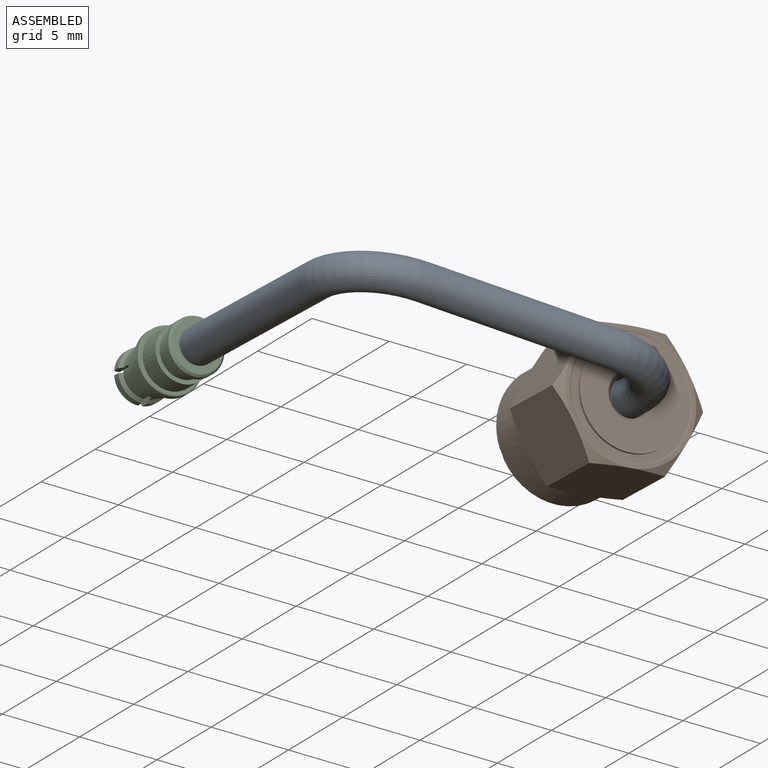
[diagram: assembled view]
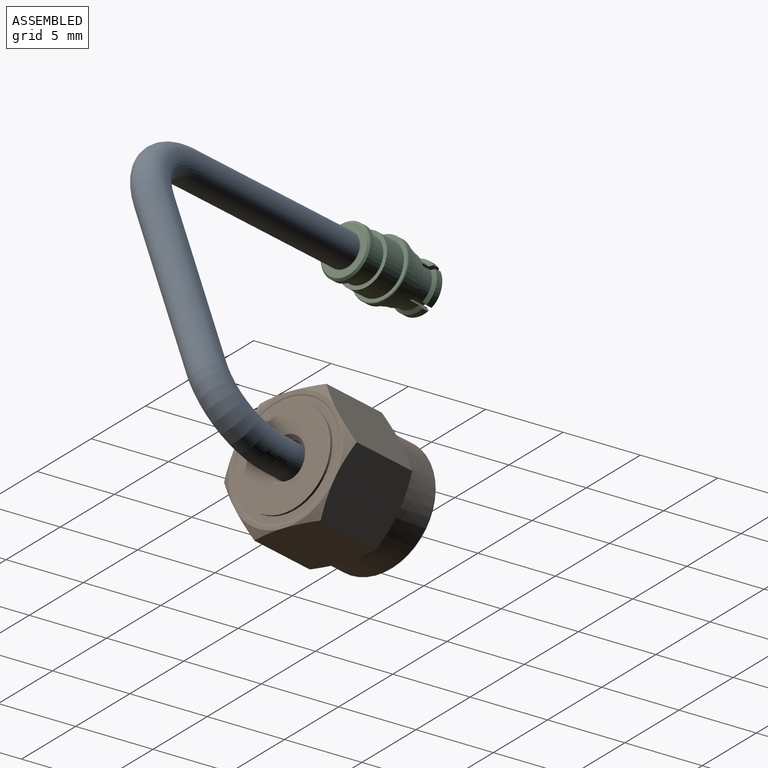
[diagram: assembled view, second angle]
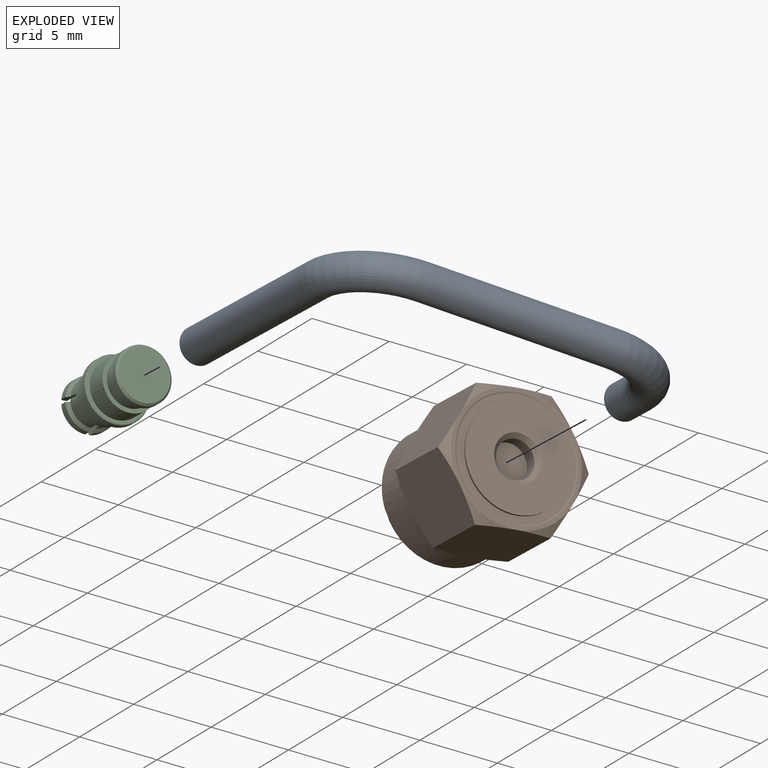
[diagram: exploded view]
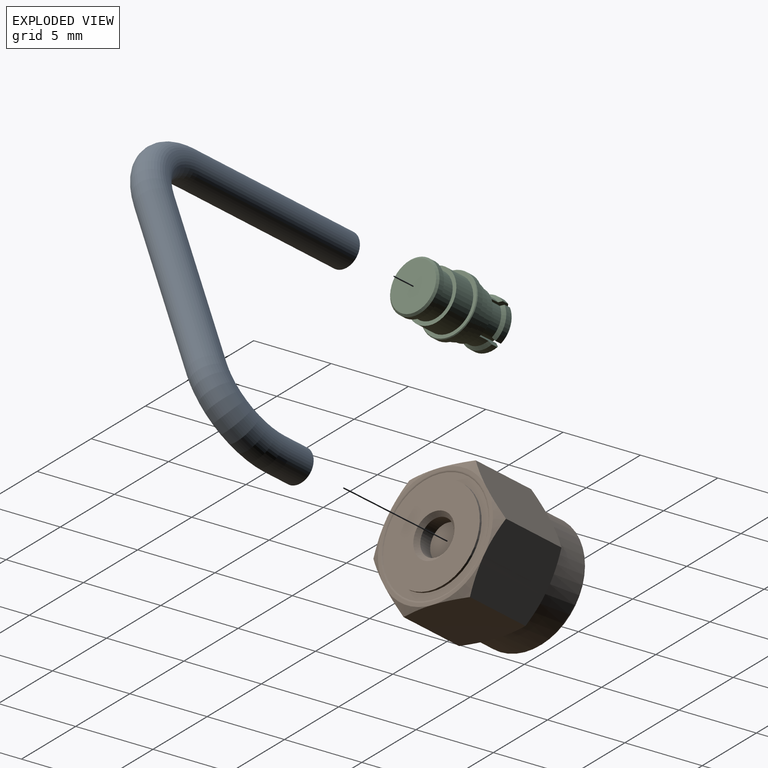
[diagram: exploded view, second angle]
ASSEMBLY  parts=3 mates=2
PART A: 7 faces, bbox 22.5x18.8x5.3 mm
  f0: torus R=4.1mm, axis (0.15,0,0.99), area 44.5mm2, adj f2,f3
  f1: torus R=4.1mm, axis (0.15,0,0.99), area 44.5mm2, adj f3,f4
  f2: cylinder r=1.1mm len=13.14mm, axis (0,1,0), area 90.8mm2, adj f0,f5
  f3: cylinder r=1.1mm len=11.74mm, axis (0.99,0,-0.15), area 79.7mm2, adj f0,f1
  f4: cylinder r=1.1mm len=2.2mm, axis (0,-1,0), area 13.1mm2, adj f1,f6
  f5: plane 2.2x2.2mm, normal (0,1,0), area 3.8mm2, adj f2
  f6: plane 2.2x2.2mm, normal (0,1,0), area 3.8mm2, adj f4
PART B: 52 faces, bbox 8.3x9.5x9.5 mm
  f0: torus R=3.67mm, axis (-1,0,0), area 3.8mm2, adj f3,f22,f23
  f1: torus R=3.45mm, axis (-1,0,0), area 3.3mm2, adj f6,f23,f28
  f2: torus R=3.75mm, axis (-1,0,0), area 1.4mm2, adj f36,f37,f38
  f3: cylinder r=3.88mm len=7.75mm, axis (-1,0,0), area 56mm2, adj f0,f4,f22
  f4: cone r=4.58mm half-angle=60deg, axis (-1,0,0), area 8.3mm2, adj f3,f24,f25,f26,f27,f29,f30
  f5: cone r=4.58mm half-angle=60deg, axis (1,0,0), area 1.5mm2, adj f26,f27,f36
  f6: cylinder r=3.25mm len=6.5mm, axis (-1,0,0), area 12.3mm2, adj f1,f7,f28
  f7: cone r=3.25mm half-angle=60deg, axis (1,0,0), area 9.4mm2, adj f6,f8
  f8: cylinder r=2.82mm len=5.65mm, axis (-1,0,0), area 37.9mm2, adj f7,f9,f39
  f9: cone r=3.21mm half-angle=60deg, axis (-1,0,0), area 4.2mm2, adj f8,f39,f40
  f10: cylinder r=3.16mm len=6.32mm, axis (-1,0,0), area 3mm2, adj f38,f41
  f11: cylinder r=3.23mm len=6.45mm, axis (-1,0,0), area 28.6mm2, adj f40,f42
  f12: cone r=1.43mm half-angle=45deg, axis (-1,0,0), area 3mm2, adj f13,f41
  f13: cylinder r=1.16mm len=2.33mm, axis (-1,0,0), area 6mm2, adj f12,f43
  f14: cylinder r=2.96mm len=5.93mm, axis (1,0,0), area 0.8mm2, adj f42,f44
  f15: cylinder r=2.27mm len=4.53mm, axis (-1,0,0), area 23.5mm2, adj f44,f45
  f16: cylinder r=2.04mm len=4.09mm, axis (-1,0,0), area 2.4mm2, adj f45,f46
  f17: cone r=2mm half-angle=45deg, axis (-1,0,0), area 0.3mm2, adj f46,f47,f48
  f18: cylinder r=0.65mm len=1.31mm, axis (1,0,0), area 0.2mm2, adj f48,f49
  f19: cylinder r=0.63mm len=1.27mm, axis (1,0,0), area 0.4mm2, adj f49,f50
  f20: cylinder r=0.46mm len=1.75mm, axis (1,0,0), area 5mm2, adj f21,f50
  f21: cone r=0.46mm half-angle=30deg, axis (-1,0,0), area 1.2mm2, adj f20,f51
  f22: torus R=3.67mm, axis (-1,0,0), area 3.8mm2, adj f0,f3,f23
  f23: plane 7.51x7.51mm, normal (1,0,0), area 5.5mm2, adj f0,f1,f22,f28
  f24: plane 5.67x4.33mm, normal (0,-0.87,0.5), area 23.1mm2, adj f4,f25,f30,f31,f32,f36
  f25: plane 5.67x4.94mm, normal (0,0,1), area 23.1mm2, adj f4,f24,f26,f31,f33
  f26: plane 5.67x4.33mm, normal (0,0.87,0.5), area 23.1mm2, adj f4,f5,f25,f27,f33
  f27: plane 5.67x4.33mm, normal (0,0.87,-0.5), area 23.1mm2, adj f4,f5,f26,f29,f34,f36
  f28: torus R=3.45mm, axis (-1,0,0), area 3.3mm2, adj f1,f6,f23
  f29: plane 5.67x4.94mm, normal (0,0,-1), area 23.1mm2, adj f4,f27,f30,f34,f35
  f30: plane 5.67x4.33mm, normal (0,-0.87,-0.5), area 23.1mm2, adj f4,f24,f29,f32,f35
  f31: cone r=4.58mm half-angle=60deg, axis (1,0,0), area 1.5mm2, adj f24,f25,f36
  f32: cone r=4.58mm half-angle=60deg, axis (1,0,0), area 1.5mm2, adj f24,f30,f36
  f33: cone r=4.58mm half-angle=60deg, axis (1,0,0), area 1.5mm2, adj f25,f26,f36
  f34: cone r=4.58mm half-angle=60deg, axis (1,0,0), area 1.5mm2, adj f27,f29,f36
  f35: cone r=4.58mm half-angle=60deg, axis (1,0,0), area 1.5mm2, adj f29,f30,f36
  f36: plane 7.93x7.93mm, normal (-1,0,0), area 5.1mm2, adj f2,f5,f24,f27,f31,f32,f33,f34
  f37: torus R=3.75mm, axis (-1,0,0), area 1.4mm2, adj f2,f36,f38
  f38: plane 7.28x7.28mm, normal (-1,0,0), area 10.2mm2, adj f2,f10,f37
  f39: cone r=3.21mm half-angle=60deg, axis (-1,0,0), area 4.2mm2, adj f8,f9,f40
  f40: plane 6.45x6.45mm, normal (-1,0,0), area 0.4mm2, adj f9,f11,f39
  f41: plane 6.32x6.32mm, normal (-1,0,0), area 25mm2, adj f10,f12
  f42: plane 6.45x6.45mm, normal (1,0,0), area 5.1mm2, adj f11,f14
  f43: plane 2.33x2.33mm, normal (-1,0,0), area 4.2mm2, adj f13
  f44: plane 5.93x5.93mm, normal (1,0,0), area 11.5mm2, adj f14,f15
  f45: plane 4.53x4.53mm, normal (1,0,0), area 3mm2, adj f15,f16
  f46: plane 4.09x4.09mm, normal (1,0,0), area 0.5mm2, adj f16,f17,f47
  f47: cone r=2mm half-angle=45deg, axis (-1,0,0), area 0.3mm2, adj f17,f46,f48
  f48: plane 3.93x3.93mm, normal (1,0,0), area 10.8mm2, adj f17,f18,f47
  f49: plane 1.31x1.31mm, normal (1,0,0), area 0.1mm2, adj f18,f19
  f50: plane 1.27x1.27mm, normal (1,0,0), area 0.6mm2, adj f19,f20
  f51: plane 0.28x0.28mm, normal (1,0,0), area 0.1mm2, adj f21
PART C: 66 faces, bbox 6.4x4x4 mm
  f0: cone r=1.7mm half-angle=45deg, axis (-1,0,0), area 1.8mm2, adj f1,f15
  f1: cylinder r=1.7mm len=3.4mm, axis (-1,0,0), area 4.1mm2, adj f0,f16
  f2: cylinder r=1.45mm len=2.9mm, axis (-1,0,0), area 9.2mm2, adj f16,f17
  f3: cylinder r=1.7mm len=3.4mm, axis (-1,0,0), area 14.9mm2, adj f17,f18
  f4: cone r=1.97mm half-angle=45deg, axis (-1,0,0), area 0.9mm2, adj f5,f18
  f5: cylinder r=1.97mm len=3.94mm, axis (1,0,0), area 5mm2, adj f4,f6
  f6: cone r=1.97mm half-angle=45deg, axis (1,0,0), area 0.9mm2, adj f5,f19
  f7: cylinder r=1.74mm len=3.48mm, axis (1,0,0), area 6.7mm2, adj f8,f19
  f8: cone r=1.74mm half-angle=45deg, axis (1,0,0), area 1.5mm2, adj f7,f20
  f9: cylinder r=1.6mm len=3.2mm, axis (1,0,0), area 5.1mm2, adj f10,f20
  f10: cone r=1.6mm half-angle=45deg, axis (1,0,0), area 0.7mm2, adj f9,f21
  f11: cylinder r=1.02mm len=2.03mm, axis (-1,0,0), area 10.2mm2, adj f21,f39
  f12: cylinder r=0.41mm len=1.78mm, axis (-1,0,0), area 0.5mm2, adj f39,f51,f52,f59
  f13: cone r=0.36mm half-angle=45deg, axis (-1,0,0), area 0.1mm2, adj f39,f52,f53,f63
  f14: cylinder r=0.22mm len=1.67mm, axis (-1,0,0), area 1.3mm2, adj f51,f52,f53,f54,f59,f61,f62,f63
  f15: plane 3.15x3.15mm, normal (1,0,0), area 7.8mm2, adj f0
  f16: plane 3.4x3.4mm, normal (-1,0,0), area 2.5mm2, adj f1,f2
  f17: plane 3.4x3.4mm, normal (1,0,0), area 2.5mm2, adj f2,f3
  f18: plane 3.84x3.84mm, normal (1,0,0), area 2.5mm2, adj f3,f4
  f19: plane 3.84x3.84mm, normal (-1,0,0), area 2mm2, adj f6,f7
  f20: plane 3.28x3.28mm, normal (-1,0,0), area 0.4mm2, adj f8,f9
  f21: plane 3.1x3.1mm, normal (-1,0,0), area 2.9mm2, adj f10,f11,f22,f23,f24,f25,f26,f27
  f22: cylinder r=1.2mm len=1.65mm, axis (-1,0,0), area 2.7mm2, adj f21,f30,f31,f56
  f23: cylinder r=1.4mm len=1.25mm, axis (-1,0,0), area 1.7mm2, adj f21,f30,f31,f32
  f24: cylinder r=1.2mm len=1.65mm, axis (-1,0,0), area 2.7mm2, adj f21,f33,f34,f57
  f25: cylinder r=1.4mm len=1.25mm, axis (-1,0,0), area 1.7mm2, adj f21,f33,f34,f35
  f26: cylinder r=1.2mm len=1.65mm, axis (-1,0,0), area 2.7mm2, adj f21,f36,f37,f58
  f27: cylinder r=1.4mm len=1.25mm, axis (-1,0,0), area 1.7mm2, adj f21,f36,f37,f38
  f28: cylinder r=1.2mm len=1.65mm, axis (-1,0,0), area 2.7mm2, adj f21,f40,f41,f60
  f29: cylinder r=1.4mm len=1.25mm, axis (-1,0,0), area 1.7mm2, adj f21,f40,f41,f42
  f30: plane 1.65x0.39mm, normal (0,-1,0), area 0.4mm2, adj f21,f22,f23,f32,f43,f48,f56
  f31: plane 1.65x0.39mm, normal (0,0,1), area 0.4mm2, adj f21,f22,f23,f32,f43,f48,f56
  f32: cone r=1.59mm half-angle=45deg, axis (-1,0,0), area 0.6mm2, adj f23,f30,f31,f43
  f33: plane 1.65x0.39mm, normal (0,1,0), area 0.4mm2, adj f21,f24,f25,f35,f44,f49,f57
  f34: plane 1.65x0.39mm, normal (0,0,-1), area 0.4mm2, adj f21,f24,f25,f35,f44,f49,f57
  f35: cone r=1.59mm half-angle=45deg, axis (-1,0,0), area 0.6mm2, adj f25,f33,f34,f44
  f36: plane 1.65x0.39mm, normal (0,0,-1), area 0.4mm2, adj f21,f26,f27,f38,f45,f50,f58
  f37: plane 1.65x0.39mm, normal (0,-1,0), area 0.4mm2, adj f21,f26,f27,f38,f45,f50,f58
  f38: cone r=1.59mm half-angle=45deg, axis (-1,0,0), area 0.6mm2, adj f27,f36,f37,f45
  f39: plane 2.03x2.03mm, normal (-1,0,0), area 2.8mm2, adj f11,f12,f13,f46,f52,f59,f63,f64
  f40: plane 1.65x0.39mm, normal (0,0,1), area 0.4mm2, adj f21,f28,f29,f42,f47,f55,f60
  f41: plane 1.65x0.39mm, normal (0,1,0), area 0.4mm2, adj f21,f28,f29,f42,f47,f55,f60
  f42: cone r=1.59mm half-angle=45deg, axis (-1,0,0), area 0.6mm2, adj f29,f40,f41,f47
  f43: cylinder r=1.59mm len=1.44mm, axis (-1,0,0), area 1mm2, adj f30,f31,f32,f48
  f44: cylinder r=1.59mm len=1.44mm, axis (-1,0,0), area 1mm2, adj f33,f34,f35,f49
  f45: cylinder r=1.59mm len=1.44mm, axis (-1,0,0), area 1mm2, adj f36,f37,f38,f50
  f46: cone r=0.36mm half-angle=45deg, axis (-1,0,0), area 0.1mm2, adj f39,f54,f59,f65
  f47: cylinder r=1.59mm len=1.44mm, axis (-1,0,0), area 1mm2, adj f40,f41,f42,f55
  f48: cone r=1.59mm half-angle=45deg, axis (1,0,0), area 0.3mm2, adj f30,f31,f43,f56
  f49: cone r=1.59mm half-angle=45deg, axis (1,0,0), area 0.3mm2, adj f33,f34,f44,f57
  f50: cone r=1.59mm half-angle=45deg, axis (1,0,0), area 0.3mm2, adj f36,f37,f45,f58
  f51: plane 0.28x0.24mm, normal (-1,0,0), area 0.1mm2, adj f12,f14,f52,f59
  f52: plane 1.8x0.23mm, normal (0,0,1), area 0.4mm2, adj f12,f13,f14,f39,f51,f53
  f53: torus R=0.33mm, axis (-1,0,0), area 0mm2, adj f13,f14,f52,f63
  f54: torus R=0.33mm, axis (-1,0,0), area 0mm2, adj f14,f46,f59,f65
  f55: cone r=1.59mm half-angle=45deg, axis (1,0,0), area 0.3mm2, adj f40,f41,f47,f60
  f56: plane 1.33x1.33mm, normal (-1,0,0), area 0.5mm2, adj f22,f30,f31,f48
  f57: plane 1.33x1.33mm, normal (-1,0,0), area 0.5mm2, adj f24,f33,f34,f49
  f58: plane 1.33x1.33mm, normal (-1,0,0), area 0.5mm2, adj f26,f36,f37,f50
  f59: plane 1.8x0.23mm, normal (0,0,-1), area 0.4mm2, adj f12,f14,f39,f46,f51,f54
  f60: plane 1.33x1.33mm, normal (-1,0,0), area 0.5mm2, adj f28,f40,f41,f55
  f61: plane 0.43x0.43mm, normal (-1,0,0), area 0.1mm2, adj f14
  f62: plane 0.28x0.24mm, normal (-1,0,0), area 0.1mm2, adj f14,f63,f64,f65
  f63: plane 1.8x0.23mm, normal (0,0,1), area 0.4mm2, adj f13,f14,f39,f53,f62,f64
  f64: cylinder r=0.41mm len=1.78mm, axis (-1,0,0), area 0.5mm2, adj f39,f62,f63,f65
  f65: plane 1.8x0.23mm, normal (0,0,-1), area 0.4mm2, adj f14,f39,f46,f54,f62,f64
PLACE A rot(axis=(-0.49,0.79,-0.37),178.2deg) t=(-90.85,-6.5,27.11)mm
PLACE B rot(axis=(0.22,0.94,-0.26),148.6deg) t=(-90.84,-14.35,8.37)mm
PLACE C rot(axis=(0.94,-0.22,0.28),151.2deg) t=(-111.72,-24.9,9.67)mm
MATE fastened C.f0 <-> A.f2  axis (0.77,-0.25,0.59) through (-106.86,-26.46,13.45)mm
MATE fastened B.f1 <-> A.f4  axis (0.77,-0.25,0.59) through (-87.04,-15.57,11.33)mm
